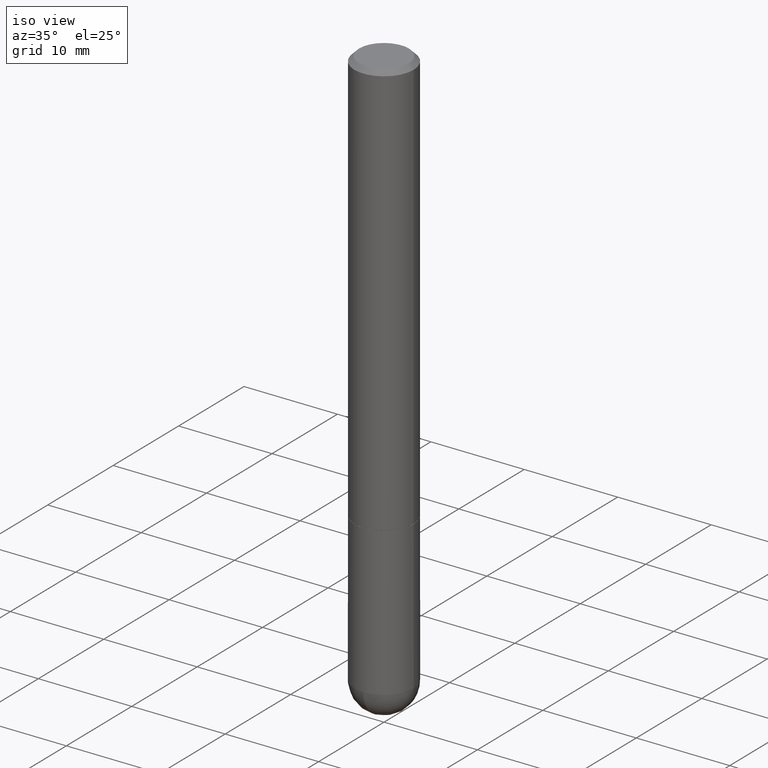
[diagram: clean part render]
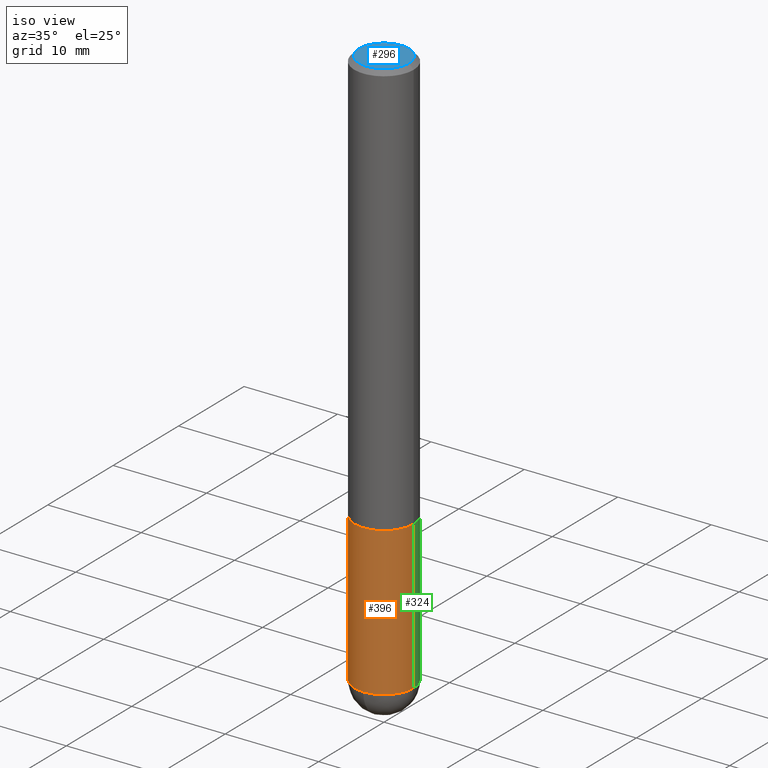
[diagram: same view with three faces highlighted in distinct colors, each labeled with its STEP entity id]
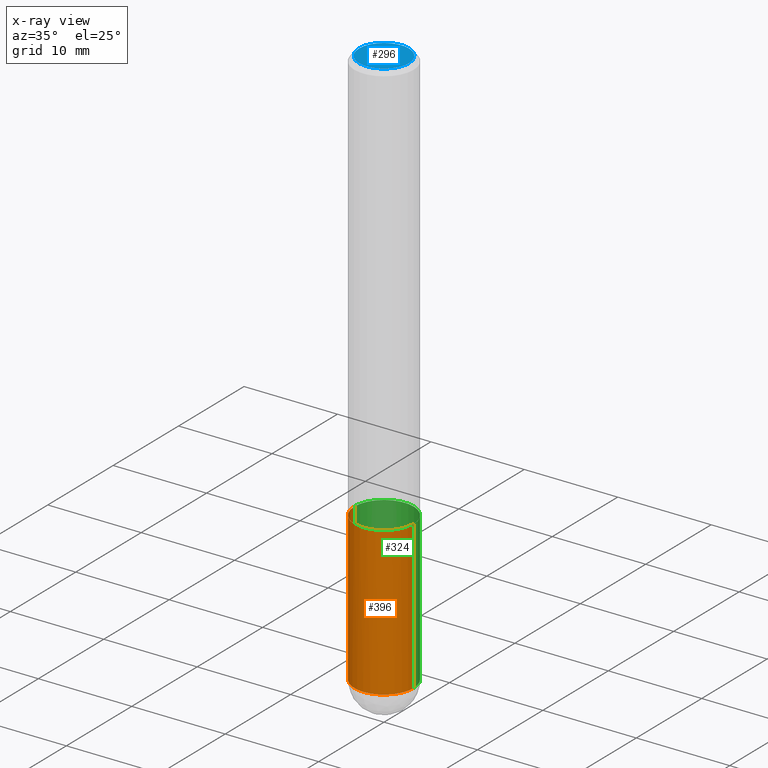
[diagram: x-ray of the same camera — body ghosted, the three highlighted faces saturated]
A machine part, iso view with three faces highlighted in distinct colors.
The next image is the same camera in x-ray (body ghosted, the three faces saturated) — at least one of them is partly hidden behind the body in this view.
Their STEP definitions:

[orange] entity #396 — the highlighted cylindrical surface (edge-blend (fillet) strip) has radius 3.175 mm, axis along (-0, 0, 1).
#2 = CARTESIAN_POINT ( 'NONE',  ( -0.1250000000000000000, -6.313001841663863345E-15, -1.750000000000000222 ) ) ;
#6 = CARTESIAN_POINT ( 'NONE',  ( 0.1250000000000000000, -8.074050596074771916E-15, -2.375000000000000000 ) ) ;
#7 = DIRECTION ( 'NONE',  ( 1.000000000000000000, -6.982962677686266711E-15, 4.876176775795935793E-29 ) ) ;
#21 = CARTESIAN_POINT ( 'NONE',  ( 0.1250000000000000000, -8.728703347107833388E-16, 6.095220969744919741E-30 ) ) ;
#36 = VERTEX_POINT ( 'NONE', #77 ) ;
#40 = EDGE_CURVE ( 'NONE', #36, #171, #193, .T. ) ;
#41 = ORIENTED_EDGE ( 'NONE', *, *, #327, .T. ) ;
#69 = DIRECTION ( 'NONE',  ( 1.000000000000000000, -6.982962677686270655E-15, 0.000000000000000000 ) ) ;
#70 = VECTOR ( 'NONE', #167, 39.37007874015748143 ) ;
#72 = ORIENTED_EDGE ( 'NONE', *, *, #104, .F. ) ;
#77 = CARTESIAN_POINT ( 'NONE',  ( -8.881784197000694204E-16, -0.1250000000000086320, -2.374999999999999556 ) ) ;
#79 = CARTESIAN_POINT ( 'NONE',  ( -0.1250000000000000000, 8.881784197001252323E-16, -6.148668862818632227E-30 ) ) ;
#90 = EDGE_LOOP ( 'NONE', ( #72, #293, #137, #41, #301 ) ) ;
#91 = VECTOR ( 'NONE', #192, 39.37007874015748143 ) ;
#104 = EDGE_CURVE ( 'NONE', #340, #408, #401, .T. ) ;
#122 = AXIS2_PLACEMENT_3D ( 'NONE', #290, #128, #7 ) ;
#123 = DIRECTION ( 'NONE',  ( -2.445468806185136597E-29, 3.491481338843145583E-15, 1.000000000000000000 ) ) ;
#127 = CARTESIAN_POINT ( 'NONE',  ( 4.279570410823989044E-29, -6.110092342975505460E-15, -1.750000000000000222 ) ) ;
#128 = DIRECTION ( 'NONE',  ( -2.445468806185136597E-29, 3.491481338843145583E-15, 1.000000000000000000 ) ) ;
#137 = ORIENTED_EDGE ( 'NONE', *, *, #40, .T. ) ;
#165 = AXIS2_PLACEMENT_3D ( 'NONE', #202, #123, #303 ) ;
#167 = DIRECTION ( 'NONE',  ( -2.445468806185136877E-29, 3.491481338843145188E-15, 1.000000000000000000 ) ) ;
#171 = VERTEX_POINT ( 'NONE', #6 ) ;
#172 = AXIS2_PLACEMENT_3D ( 'NONE', #246, #173, #69 ) ;
#173 = DIRECTION ( 'NONE',  ( -2.445468806185136597E-29, 3.491481338843145583E-15, 1.000000000000000000 ) ) ;
#192 = DIRECTION ( 'NONE',  ( -2.445468806185136877E-29, 3.491481338843145188E-15, 1.000000000000000000 ) ) ;
#193 = CIRCLE ( 'NONE', #165, 0.1250000000000000000 ) ;
#202 = CARTESIAN_POINT ( 'NONE',  ( 5.807988414689700538E-29, -8.292268179752471696E-15, -2.375000000000000000 ) ) ;
#205 = CIRCLE ( 'NONE', #172, 0.1250000000000000000 ) ;
#215 = LINE ( 'NONE', #21, #70 ) ;
#235 = CYLINDRICAL_SURFACE ( 'NONE', #122, 0.1250000000000000000 ) ;
#246 = CARTESIAN_POINT ( 'NONE',  ( 5.807988414689700538E-29, -8.292268179752471696E-15, -2.375000000000000000 ) ) ;
#247 = DIRECTION ( 'NONE',  ( -2.445468806185136597E-29, 3.491481338843145583E-15, 1.000000000000000000 ) ) ;
#253 = CIRCLE ( 'NONE', #412, 0.1250000000000000000 ) ;
#281 = CARTESIAN_POINT ( 'NONE',  ( 0.1250000000000000000, -6.982962677686288010E-15, -1.750000000000000222 ) ) ;
#283 = VERTEX_POINT ( 'NONE', #281 ) ;
#287 = EDGE_CURVE ( 'NONE', #340, #36, #205, .T. ) ;
#290 = CARTESIAN_POINT ( 'NONE',  ( 0.000000000000000000, 0.000000000000000000, 0.000000000000000000 ) ) ;
#293 = ORIENTED_EDGE ( 'NONE', *, *, #287, .T. ) ;
#301 = ORIENTED_EDGE ( 'NONE', *, *, #409, .F. ) ;
#303 = DIRECTION ( 'NONE',  ( 1.000000000000000000, -6.982962677686270655E-15, 0.000000000000000000 ) ) ;
#327 = EDGE_CURVE ( 'NONE', #171, #283, #215, .T. ) ;
#340 = VERTEX_POINT ( 'NONE', #405 ) ;
#381 = FACE_OUTER_BOUND ( 'NONE', #90, .T. ) ;
#386 = DIRECTION ( 'NONE',  ( 1.000000000000000000, -6.982962677686262766E-15, 0.000000000000000000 ) ) ;
#396 = ADVANCED_FACE ( 'NONE', ( #381 ), #235, .T. ) ;
#401 = LINE ( 'NONE', #79, #91 ) ;
#405 = CARTESIAN_POINT ( 'NONE',  ( -0.1250000000000000000, -6.313001841663864134E-15, -2.375000000000000000 ) ) ;
#408 = VERTEX_POINT ( 'NONE', #2 ) ;
#409 = EDGE_CURVE ( 'NONE', #408, #283, #253, .T. ) ;
#412 = AXIS2_PLACEMENT_3D ( 'NONE', #127, #247, #386 ) ;

[blue] entity #296 — the highlighted planar face has unit normal (0, -0, -1).
#8 = AXIS2_PLACEMENT_3D ( 'NONE', #189, #325, #159 ) ;
#24 = EDGE_LOOP ( 'NONE', ( #169, #121 ) ) ;
#34 = CARTESIAN_POINT ( 'NONE',  ( -1.346568324492433449E-44, 1.922542689790777039E-30, 5.506381112229530704E-16 ) ) ;
#71 = DIRECTION ( 'NONE',  ( -2.445468806185136597E-29, 3.491481338843145583E-15, 1.000000000000000000 ) ) ;
#111 = CARTESIAN_POINT ( 'NONE',  ( -0.1049999999999994965, 7.681258945454883915E-16, 5.506381112229478442E-16 ) ) ;
#112 = VERTEX_POINT ( 'NONE', #111 ) ;
#113 = CIRCLE ( 'NONE', #350, 0.1049999999999994965 ) ;
#118 = FACE_OUTER_BOUND ( 'NONE', #24, .T. ) ;
#121 = ORIENTED_EDGE ( 'NONE', *, *, #130, .T. ) ;
#130 = EDGE_CURVE ( 'NONE', #374, #112, #320, .T. ) ;
#155 = AXIS2_PLACEMENT_3D ( 'NONE', #267, #201, #268 ) ;
#156 = PLANE ( 'NONE',  #8 ) ;
#159 = DIRECTION ( 'NONE',  ( -1.000000000000000000, 6.982962677686265922E-15, -4.876176775795935793E-29 ) ) ;
#169 = ORIENTED_EDGE ( 'NONE', *, *, #372, .T. ) ;
#182 = DIRECTION ( 'NONE',  ( 1.000000000000000000, -6.982962677686266711E-15, 4.852736867747389749E-29 ) ) ;
#189 = CARTESIAN_POINT ( 'NONE',  ( 7.332110811570543758E-16, 0.1049999999999994965, -9.128648496705199626E-17 ) ) ;
#201 = DIRECTION ( 'NONE',  ( -2.445468806185136597E-29, 3.491481338843145583E-15, 1.000000000000000000 ) ) ;
#267 = CARTESIAN_POINT ( 'NONE',  ( -1.346568324492433449E-44, 1.922542689790777039E-30, 5.506381112229530704E-16 ) ) ;
#268 = DIRECTION ( 'NONE',  ( 1.000000000000000000, -6.982962677686266711E-15, 4.852736867747389749E-29 ) ) ;
#296 = ADVANCED_FACE ( 'NONE', ( #118 ), #156, .F. ) ;
#315 = CARTESIAN_POINT ( 'NONE',  ( 0.1049999999999994965, -8.238720831321551006E-16, 5.506381112229584938E-16 ) ) ;
#320 = CIRCLE ( 'NONE', #155, 0.1049999999999994965 ) ;
#325 = DIRECTION ( 'NONE',  ( 2.438088387897960049E-29, -3.491481338843145188E-15, -1.000000000000000000 ) ) ;
#350 = AXIS2_PLACEMENT_3D ( 'NONE', #34, #71, #182 ) ;
#372 = EDGE_CURVE ( 'NONE', #112, #374, #113, .T. ) ;
#374 = VERTEX_POINT ( 'NONE', #315 ) ;

[green] entity #324 — the highlighted cylindrical surface (edge-blend (fillet) strip) has radius 3.175 mm, axis along (-0, 0, 1).
#2 = CARTESIAN_POINT ( 'NONE',  ( -0.1250000000000000000, -6.313001841663863345E-15, -1.750000000000000222 ) ) ;
#5 = ORIENTED_EDGE ( 'NONE', *, *, #398, .T. ) ;
#6 = CARTESIAN_POINT ( 'NONE',  ( 0.1250000000000000000, -8.074050596074771916E-15, -2.375000000000000000 ) ) ;
#16 = CARTESIAN_POINT ( 'NONE',  ( 8.728703347108403340E-16, 0.1249999999999915623, -2.375000000000000888 ) ) ;
#19 = ORIENTED_EDGE ( 'NONE', *, *, #134, .F. ) ;
#21 = CARTESIAN_POINT ( 'NONE',  ( 0.1250000000000000000, -8.728703347107833388E-16, 6.095220969744919741E-30 ) ) ;
#43 = DIRECTION ( 'NONE',  ( 1.000000000000000000, -6.982962677686270655E-15, 0.000000000000000000 ) ) ;
#46 = DIRECTION ( 'NONE',  ( -2.445468806185136597E-29, 3.491481338843145583E-15, 1.000000000000000000 ) ) ;
#65 = ORIENTED_EDGE ( 'NONE', *, *, #67, .T. ) ;
#67 = EDGE_CURVE ( 'NONE', #171, #89, #196, .T. ) ;
#70 = VECTOR ( 'NONE', #167, 39.37007874015748143 ) ;
#79 = CARTESIAN_POINT ( 'NONE',  ( -0.1250000000000000000, 8.881784197001252323E-16, -6.148668862818632227E-30 ) ) ;
#89 = VERTEX_POINT ( 'NONE', #16 ) ;
#91 = VECTOR ( 'NONE', #192, 39.37007874015748143 ) ;
#94 = DIRECTION ( 'NONE',  ( -2.445468806185136597E-29, 3.491481338843145583E-15, 1.000000000000000000 ) ) ;
#104 = EDGE_CURVE ( 'NONE', #340, #408, #401, .T. ) ;
#105 = DIRECTION ( 'NONE',  ( 1.000000000000000000, -6.982962677686266711E-15, 4.876176775795935793E-29 ) ) ;
#109 = FACE_OUTER_BOUND ( 'NONE', #307, .T. ) ;
#124 = CYLINDRICAL_SURFACE ( 'NONE', #214, 0.1250000000000000000 ) ;
#131 = DIRECTION ( 'NONE',  ( -2.445468806185136597E-29, 3.491481338843145583E-15, 1.000000000000000000 ) ) ;
#132 = ORIENTED_EDGE ( 'NONE', *, *, #327, .F. ) ;
#134 = EDGE_CURVE ( 'NONE', #283, #408, #263, .T. ) ;
#164 = DIRECTION ( 'NONE',  ( 1.000000000000000000, -6.982962677686262766E-15, 0.000000000000000000 ) ) ;
#167 = DIRECTION ( 'NONE',  ( -2.445468806185136877E-29, 3.491481338843145188E-15, 1.000000000000000000 ) ) ;
#171 = VERTEX_POINT ( 'NONE', #6 ) ;
#192 = DIRECTION ( 'NONE',  ( -2.445468806185136877E-29, 3.491481338843145188E-15, 1.000000000000000000 ) ) ;
#196 = CIRCLE ( 'NONE', #310, 0.1250000000000000000 ) ;
#214 = AXIS2_PLACEMENT_3D ( 'NONE', #279, #46, #105 ) ;
#215 = LINE ( 'NONE', #21, #70 ) ;
#258 = AXIS2_PLACEMENT_3D ( 'NONE', #375, #339, #164 ) ;
#263 = CIRCLE ( 'NONE', #258, 0.1250000000000000000 ) ;
#276 = AXIS2_PLACEMENT_3D ( 'NONE', #393, #131, #43 ) ;
#279 = CARTESIAN_POINT ( 'NONE',  ( 0.000000000000000000, 0.000000000000000000, 0.000000000000000000 ) ) ;
#281 = CARTESIAN_POINT ( 'NONE',  ( 0.1250000000000000000, -6.982962677686288010E-15, -1.750000000000000222 ) ) ;
#283 = VERTEX_POINT ( 'NONE', #281 ) ;
#297 = CIRCLE ( 'NONE', #276, 0.1250000000000000000 ) ;
#307 = EDGE_LOOP ( 'NONE', ( #5, #384, #19, #132, #65 ) ) ;
#310 = AXIS2_PLACEMENT_3D ( 'NONE', #388, #94, #410 ) ;
#324 = ADVANCED_FACE ( 'NONE', ( #109 ), #124, .T. ) ;
#327 = EDGE_CURVE ( 'NONE', #171, #283, #215, .T. ) ;
#339 = DIRECTION ( 'NONE',  ( -2.445468806185136597E-29, 3.491481338843145583E-15, 1.000000000000000000 ) ) ;
#340 = VERTEX_POINT ( 'NONE', #405 ) ;
#375 = CARTESIAN_POINT ( 'NONE',  ( 4.279570410823989044E-29, -6.110092342975505460E-15, -1.750000000000000222 ) ) ;
#384 = ORIENTED_EDGE ( 'NONE', *, *, #104, .T. ) ;
#388 = CARTESIAN_POINT ( 'NONE',  ( 5.807988414689700538E-29, -8.292268179752471696E-15, -2.375000000000000000 ) ) ;
#393 = CARTESIAN_POINT ( 'NONE',  ( 5.807988414689700538E-29, -8.292268179752471696E-15, -2.375000000000000000 ) ) ;
#398 = EDGE_CURVE ( 'NONE', #89, #340, #297, .T. ) ;
#401 = LINE ( 'NONE', #79, #91 ) ;
#405 = CARTESIAN_POINT ( 'NONE',  ( -0.1250000000000000000, -6.313001841663864134E-15, -2.375000000000000000 ) ) ;
#408 = VERTEX_POINT ( 'NONE', #2 ) ;
#410 = DIRECTION ( 'NONE',  ( 1.000000000000000000, -6.982962677686270655E-15, 0.000000000000000000 ) ) ;